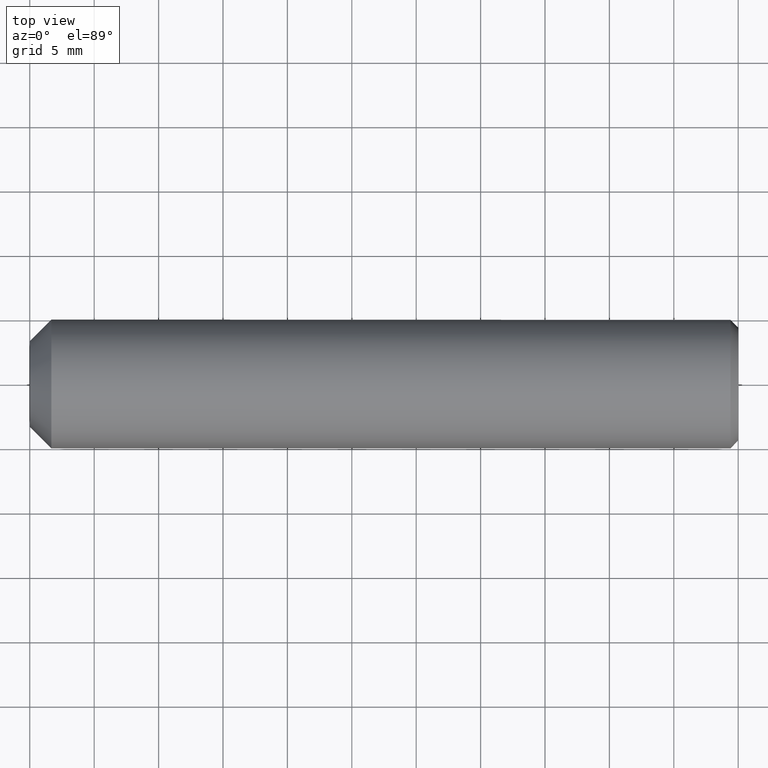
[diagram: clean part render]
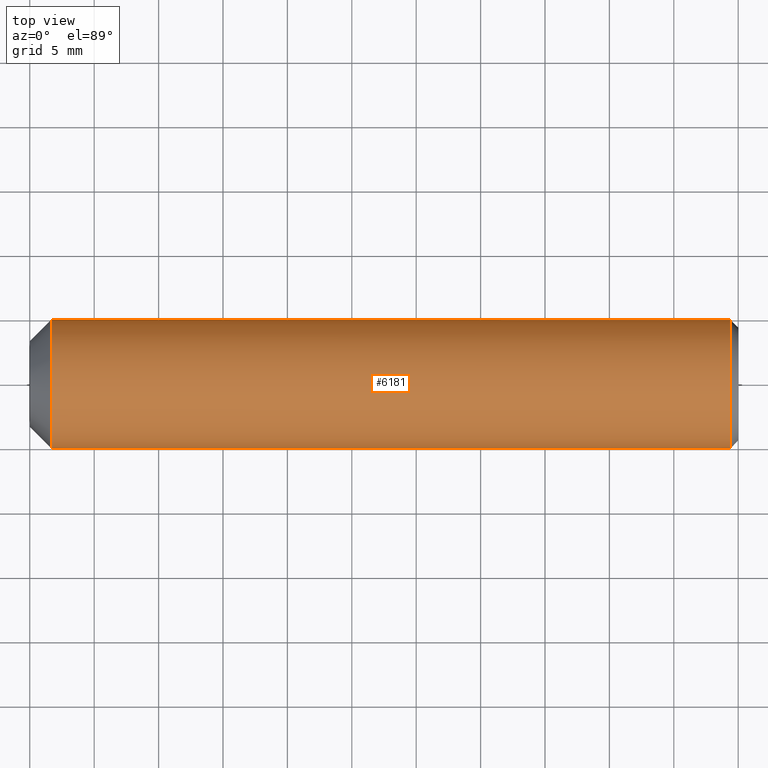
[diagram: same view with one face highlighted and labeled with its STEP entity id]
A machine part, top view. The second image highlights one B-rep face of the part: STEP entity #6181.
In plain terms, the highlighted cylindrical surface (bore or boss wall) has radius 5 mm, axis along (-1, -0, -0).
Its self-contained STEP definition (entity closure, byte-faithful):
#1318 = AXIS2_PLACEMENT_3D ( 'NONE', #14070, #8822, #10138 ) ;
#2239 = EDGE_CURVE ( 'NONE', #9851, #9851, #14953, .T. ) ;
#3143 = CIRCLE ( 'NONE', #16015, 5.000000000000000000 ) ;
#3351 = FACE_OUTER_BOUND ( 'NONE', #14212, .T. ) ;
#4765 = CARTESIAN_POINT ( 'NONE',  ( 1.679999999999987500, -4.538988261647290200E-017, 0.0000000000000000000 ) ) ;
#4962 = FACE_OUTER_BOUND ( 'NONE', #6906, .T. ) ;
#5167 = DIRECTION ( 'NONE',  ( -1.000000000000000000, 0.0000000000000000000, 0.0000000000000000000 ) ) ;
#5384 = CARTESIAN_POINT ( 'NONE',  ( 54.39999999999999900, 0.0000000000000000000, -5.000000000000000000 ) ) ;
#6181 = ADVANCED_FACE ( 'NONE', ( #3351, #4962 ), #9190, .T. ) ;
#6321 = EDGE_CURVE ( 'NONE', #9012, #9012, #3143, .T. ) ;
#6432 = CARTESIAN_POINT ( 'NONE',  ( 1.679999999999987300, -5.000000000000000000, 0.0000000000000000000 ) ) ;
#6906 = EDGE_LOOP ( 'NONE', ( #11211 ) ) ;
#7274 = DIRECTION ( 'NONE',  ( -4.336808689942017700E-017, -1.000000000000000000, 0.0000000000000000000 ) ) ;
#8822 = DIRECTION ( 'NONE',  ( -1.000000000000000000, -0.0000000000000000000, -0.0000000000000000000 ) ) ;
#9012 = VERTEX_POINT ( 'NONE', #5384 ) ;
#9190 = CYLINDRICAL_SURFACE ( 'NONE', #1318, 5.000000000000000000 ) ;
#9586 = AXIS2_PLACEMENT_3D ( 'NONE', #4765, #12469, #7274 ) ;
#9851 = VERTEX_POINT ( 'NONE', #6432 ) ;
#10138 = DIRECTION ( 'NONE',  ( 0.0000000000000000000, 0.0000000000000000000, 1.000000000000000000 ) ) ;
#11211 = ORIENTED_EDGE ( 'NONE', *, *, #2239, .F. ) ;
#11526 = DIRECTION ( 'NONE',  ( 0.0000000000000000000, 0.0000000000000000000, -1.000000000000000000 ) ) ;
#12139 = ORIENTED_EDGE ( 'NONE', *, *, #6321, .T. ) ;
#12469 = DIRECTION ( 'NONE',  ( -1.000000000000000000, 2.701778727171026400E-017, -0.0000000000000000000 ) ) ;
#12865 = CARTESIAN_POINT ( 'NONE',  ( 54.39999999999999900, 0.0000000000000000000, 0.0000000000000000000 ) ) ;
#14070 = CARTESIAN_POINT ( 'NONE',  ( 55.00000000000000000, 0.0000000000000000000, 0.0000000000000000000 ) ) ;
#14212 = EDGE_LOOP ( 'NONE', ( #12139 ) ) ;
#14953 = CIRCLE ( 'NONE', #9586, 5.000000000000000000 ) ;
#16015 = AXIS2_PLACEMENT_3D ( 'NONE', #12865, #5167, #11526 ) ;